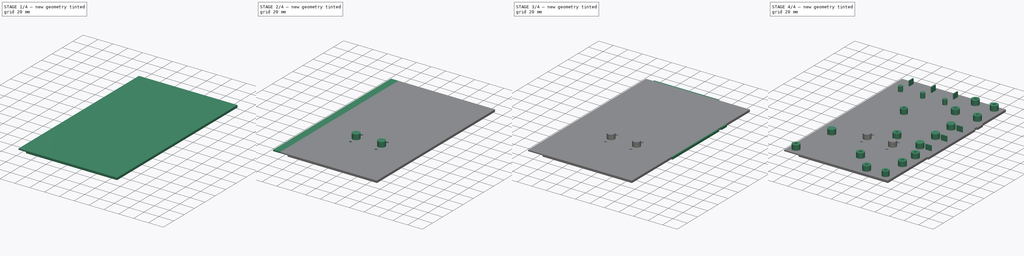
[diagram: build sequence overview — one tinted view per stage of 4, left to right]
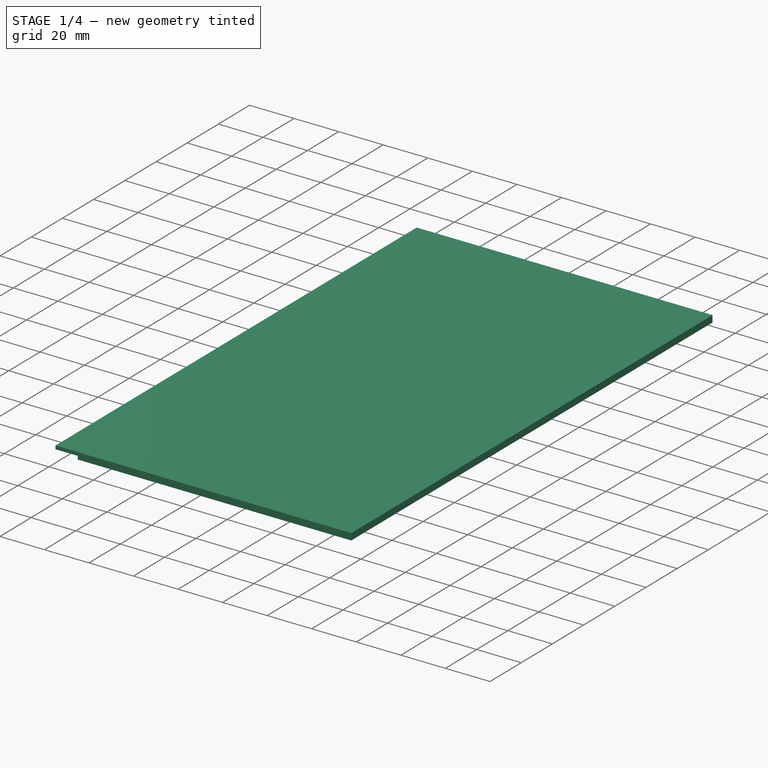
[diagram: stage 1 of 4 — iso view after this stage's code; geometry added in this stage tinted green]
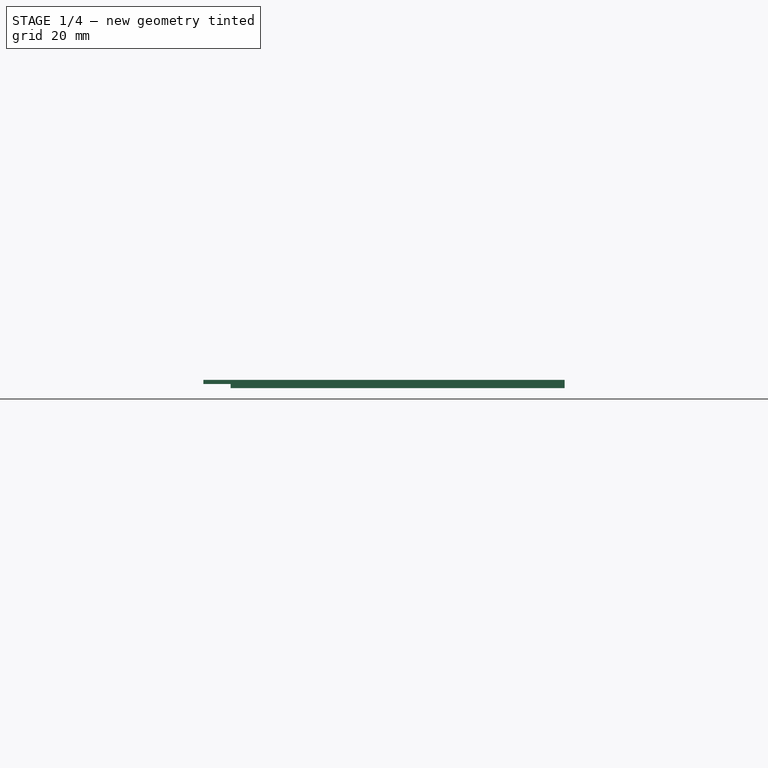
[diagram: stage 1 of 4 — front view after this stage's code; geometry added in this stage tinted green]
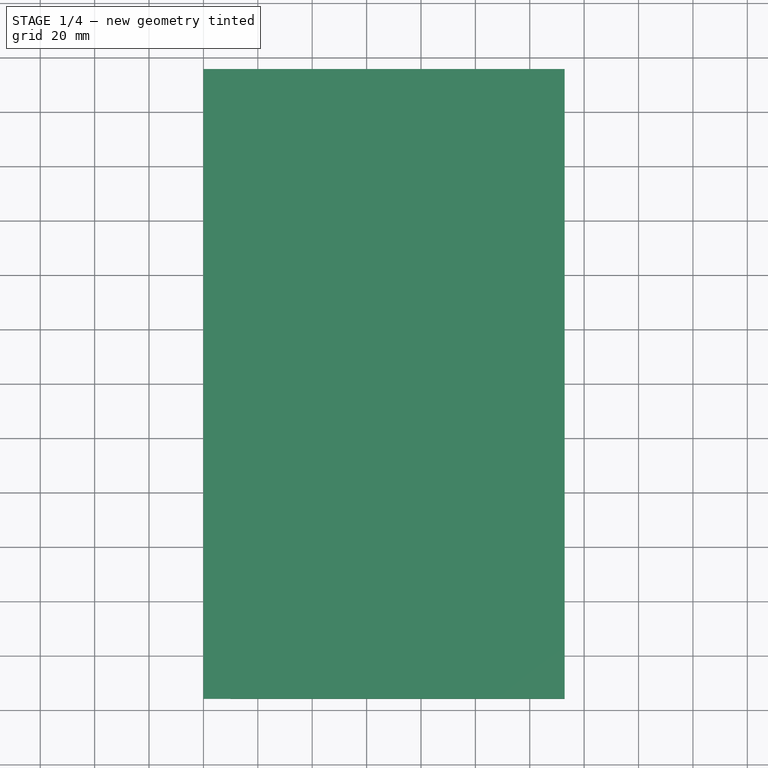
[diagram: stage 1 of 4 — top view after this stage's code; geometry added in this stage tinted green]
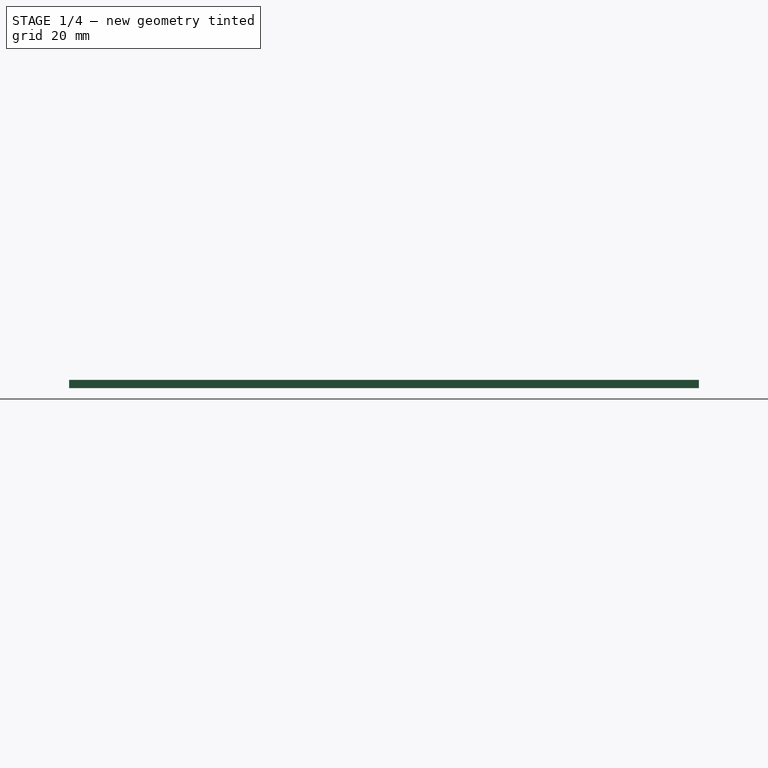
[diagram: stage 1 of 4 — right view after this stage's code; geometry added in this stage tinted green]
FCSTD DOCUMENT  (FreeCAD 0.19R24276 (Git))
Label: switchboard_case_right_bottom_part
License: All rights reserved
LicenseURL: http://en.wikipedia.org/wiki/All_rights_reserved
objects: Sketcher::SketchObject×10, PartDesign::Pad×6, PartDesign::Pocket×3, PartDesign::Hole×1, PartDesign::Body×1
note: 31 computed .brp shape members not serialized (recipe doc carries the construction recipe); baked Part::Feature solids carry a one-line shape summary decoded from their .brp

FEATURE [Sketcher::SketchObject] Sketch  label="base"
  FullyConstrained = true
  MapMode = 2
  Placement = pos=(0,0,18) rot=(0,0,1;0rad)
  sketch-geometry (4):
    g0: LineSegment StartX=0 StartY=115.8 StartZ=0 EndX=132.8 EndY=115.8 EndZ=0
    g1: LineSegment StartX=132.8 StartY=115.8 StartZ=0 EndX=132.8 EndY=-115.8 EndZ=0
    g2: LineSegment StartX=132.8 StartY=-115.8 StartZ=0 EndX=0 EndY=-115.8 EndZ=0
    g3: LineSegment StartX=0 StartY=-115.8 StartZ=0 EndX=0 EndY=115.8 EndZ=0
  constraints (12):
    c: Coincident(g0,g1)
    c: Coincident(g1,g2)
    c: Coincident(g2,g3)
    c: Coincident(g3,g0)
    c: Horizontal(g0)
    c: Horizontal(g2)
    c: Vertical(g1)
    c: Vertical(g3)
    c: DistanceY(g-1,g0) = 115.8
    c: DistanceY(g2,g-1) = 115.8
    c: DistanceX(g0,g0) = 132.8
    c: DistanceX(g-1,g0) = 0
FEATURE [PartDesign::Pad] Pad  label="base_pad"
  Direction = (1,1,1)
  Length = 3
  Length2 = 100
  Placement = pos=(0,0,18) rot=(0,0,1;0rad)
  Profile = -> Sketch
  Type = 0
FEATURE [Sketcher::SketchObject] Sketch001  label="junction_in"
  FullyConstrained = true
  MapMode = 5
  Placement = pos=(0,0,18) rot=(0.57735,-0.57735,-0.57735;2.0944rad)
  Support = -> [Pad]
  sketch-geometry (4):
    g0: LineSegment StartX=-115.8 StartY=1.5 StartZ=0 EndX=115.8 EndY=1.5 EndZ=0
    g1: LineSegment StartX=115.8 StartY=1.5 StartZ=0 EndX=115.8 EndY=0 EndZ=0
    g2: LineSegment StartX=115.8 StartY=0 StartZ=0 EndX=-115.8 EndY=0 EndZ=0
    g3: LineSegment StartX=-115.8 StartY=0 StartZ=0 EndX=-115.8 EndY=1.5 EndZ=0
  constraints (12):
    c: Coincident(g0,g1)
    c: Coincident(g1,g2)
    c: Coincident(g2,g3)
    c: Coincident(g3,g0)
    c: Horizontal(g0)
    c: Horizontal(g2)
    c: Vertical(g1)
    c: Vertical(g3)
    c: PointOnObject(g1,g-1)
    c: DistanceX(g2,g-1) = 115.8
    c: DistanceX(g-1,g1) = 115.8
    c: DistanceY(g3,g3) = 1.5
FEATURE [PartDesign::Pocket] Pocket  label="junction_pocket"
  BaseFeature = -> Pad
  Length = 10
  Length2 = 100
  Placement = pos=(0,0,18) rot=(0,0,1;0rad)
  Profile = -> Sketch001
  Type = 0
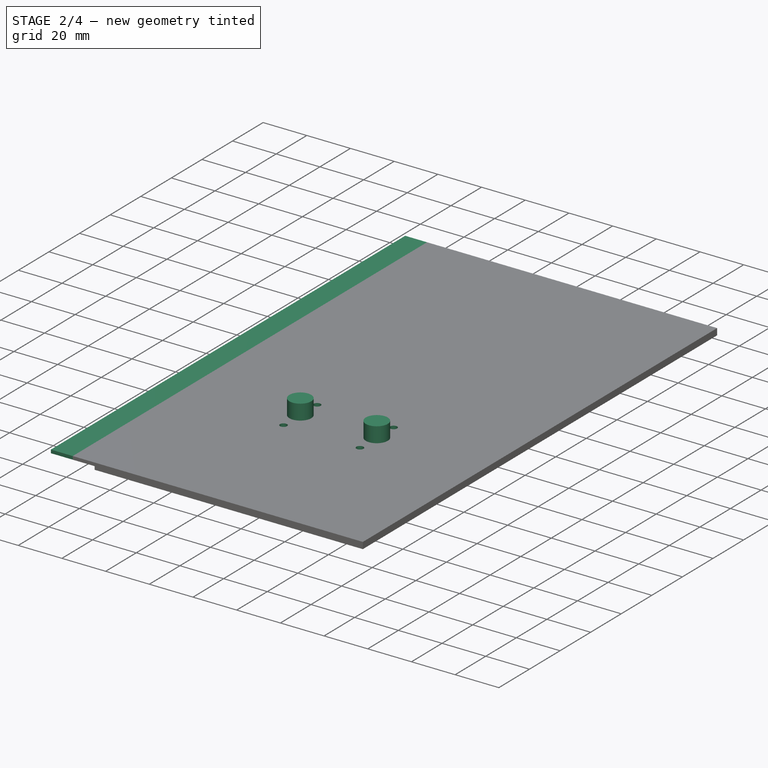
[diagram: stage 2 of 4 — iso view after this stage's code; geometry added in this stage tinted green]
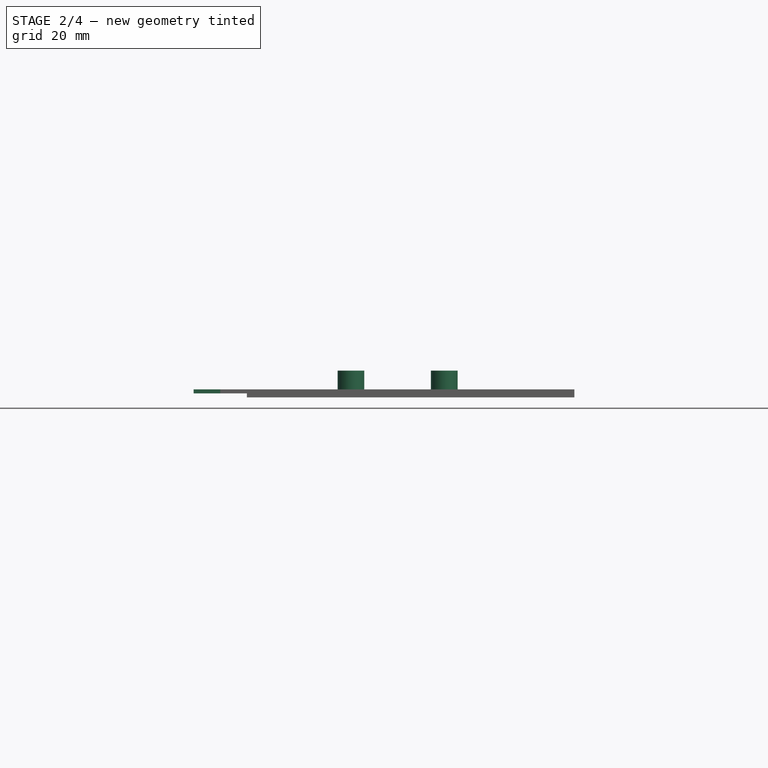
[diagram: stage 2 of 4 — front view after this stage's code; geometry added in this stage tinted green]
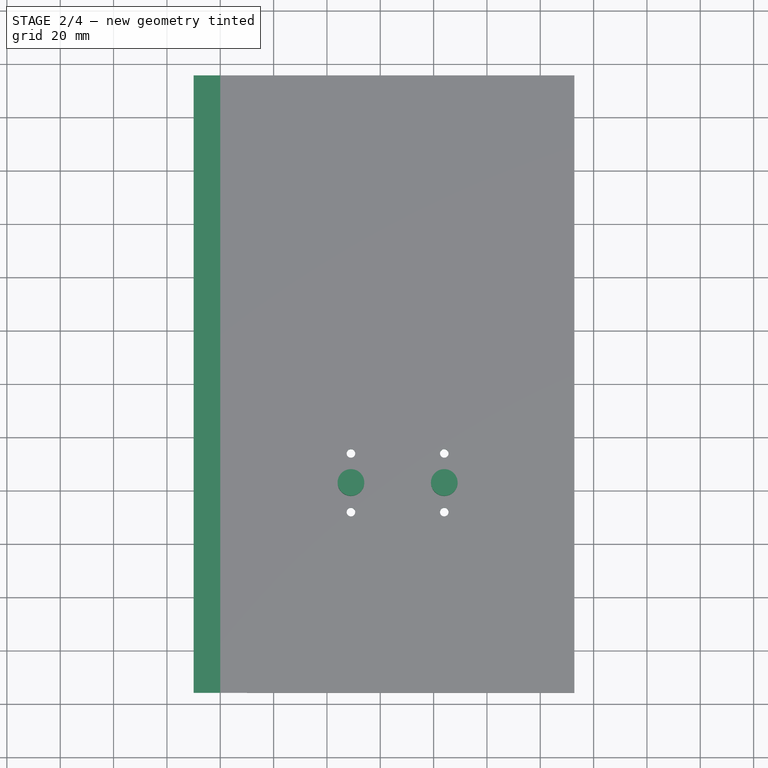
[diagram: stage 2 of 4 — top view after this stage's code; geometry added in this stage tinted green]
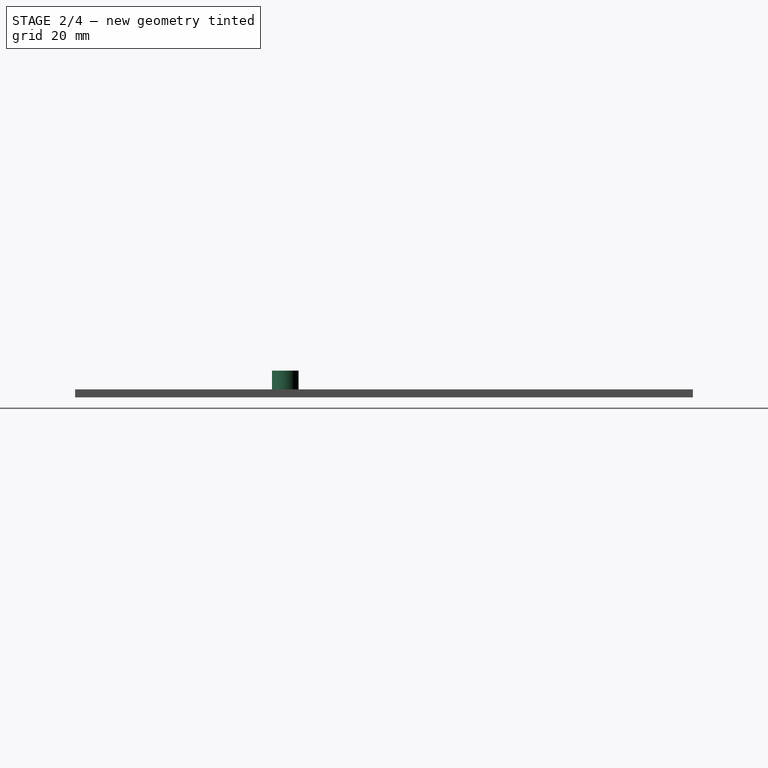
[diagram: stage 2 of 4 — right view after this stage's code; geometry added in this stage tinted green]
FEATURE [Sketcher::SketchObject] Sketch002  label="junction_out"
  FullyConstrained = true
  MapMode = 5
  Placement = pos=(0,0,18) rot=(0.57735,-0.57735,-0.57735;2.0944rad)
  Support = -> [Pocket]
  sketch-geometry (4):
    g0: LineSegment StartX=-115.8 StartY=3 StartZ=0 EndX=115.8 EndY=3 EndZ=0
    g1: LineSegment StartX=115.8 StartY=3 StartZ=0 EndX=115.8 EndY=1.5 EndZ=0
    g2: LineSegment StartX=115.8 StartY=1.5 StartZ=0 EndX=-115.8 EndY=1.5 EndZ=0
    g3: LineSegment StartX=-115.8 StartY=1.5 StartZ=0 EndX=-115.8 EndY=3 EndZ=0
  constraints (12):
    c: Coincident(g0,g1)
    c: Coincident(g1,g2)
    c: Coincident(g2,g3)
    c: Coincident(g3,g0)
    c: Horizontal(g0)
    c: Horizontal(g2)
    c: Vertical(g1)
    c: Vertical(g3)
    c: DistanceX(g2,g-1) = 115.8
    c: DistanceX(g-1,g1) = 115.8
    c: DistanceY(g3,g3) = 1.5
    c: DistanceY(g-1,g2) = 1.5
FEATURE [PartDesign::Pad] Pad001  label="junction_pad"
  BaseFeature = -> Pocket
  Direction = (1,1,1)
  Length = 10
  Length2 = 100
  Placement = pos=(0,0,18) rot=(0,0,1;0rad)
  Profile = -> Sketch002
  Type = 0
FEATURE [Sketcher::SketchObject] Sketch005  label="din_holder_hole_top"
  FullyConstrained = true
  MapMode = 5
  Placement = pos=(0,0,21) rot=(0,0,1;0rad)
  sketch-geometry (4):
    g0: Circle CenterX=49 CenterY=-26 CenterZ=0 NormalX=0 NormalY=0 NormalZ=1 AngleXU=0 Radius=1.6
    g1: Circle CenterX=84 CenterY=-26 CenterZ=0 NormalX=0 NormalY=0 NormalZ=1 AngleXU=0 Radius=1.6
    g2: Circle CenterX=49 CenterY=-48 CenterZ=0 NormalX=0 NormalY=0 NormalZ=1 AngleXU=0 Radius=1.6
    g3: Circle CenterX=84 CenterY=-48 CenterZ=0 NormalX=0 NormalY=0 NormalZ=1 AngleXU=0 Radius=1.6
  constraints (12):
    c: Radius(g0) = 1.6
    c: Radius(g1) = 1.6
    c: Radius(g3) = 1.6
    c: Radius(g2) = 1.6
    c: DistanceX(g-1,g0) = 49
    c: DistanceY(g0,g-1) = 26
    c: DistanceX(g0,g1) = 35
    c: DistanceY(g1,g0) = 0
    c: DistanceY(g2,g0) = 22
    c: DistanceY(g3,g1) = 22
    c: DistanceX(g1,g3) = 0
    c: DistanceX(g2,g0) = 0
FEATURE [PartDesign::Hole] Hole  label="din_holder_hole_top_hole"
  BaseFeature = -> Pad001
  Depth = 25
  DepthType = 1
  Diameter = 3.2
  DrillForDepth = false
  DrillPoint = 1
  DrillPointAngle = 118
  HoleCutCountersinkAngle = 90
  HoleCutCustomValues = false
  HoleCutDepth = 0
  HoleCutDiameter = 6.1
  HoleCutType = 0
  ModelActualThread = false
  Placement = pos=(0,0,18) rot=(0,0,1;0rad)
  Profile = -> Sketch005
  Tapered = false
  TaperedAngle = 90
  ThreadAngle = 0
  ThreadClass = 0
  ThreadCutOffInner = 0
  ThreadCutOffOuter = 0
  ThreadDirection = 0
  ThreadFit = 0
  ThreadPitch = 0
  ThreadSize = 0
  ThreadType = 0
  Threaded = false
FEATURE [Sketcher::SketchObject] Sketch006  label="din_holder_distance_columns"
  FullyConstrained = true
  MapMode = 5
  Placement = pos=(0,0,21) rot=(0,0,1;0rad)
  Support = -> [Hole]
  sketch-geometry (2):
    g0: Circle CenterX=49 CenterY=-37 CenterZ=0 NormalX=0 NormalY=0 NormalZ=1 AngleXU=0 Radius=5
    g1: Circle CenterX=84 CenterY=-37 CenterZ=0 NormalX=0 NormalY=0 NormalZ=1 AngleXU=0 Radius=5
  constraints (6):
    c: Radius(g0) = 5
    c: Radius(g1) = 5
    c: DistanceY(g0,g-1) = 37
    c: DistanceX(g-1,g0) = 49
    c: DistanceX(g0,g1) = 35
    c: DistanceY(g0,g1) = 0
FEATURE [PartDesign::Pad] Pad003  label="din_holder_distance_columns_pad"
  BaseFeature = -> Hole
  Direction = (1,1,1)
  Length = 7
  Length2 = 100
  Placement = pos=(0,0,18) rot=(0,0,1;0rad)
  Profile = -> Sketch006
  Type = 0
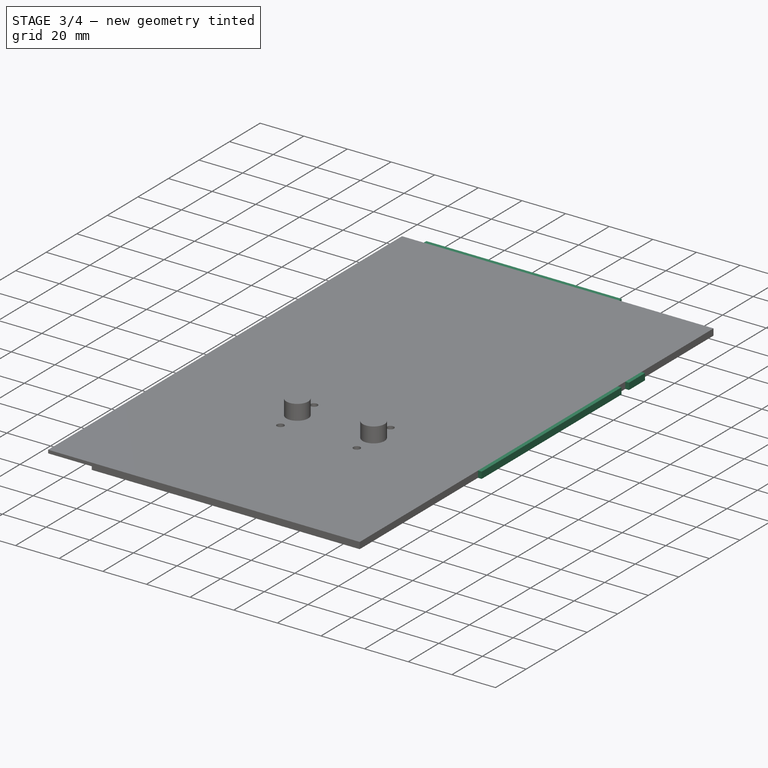
[diagram: stage 3 of 4 — iso view after this stage's code; geometry added in this stage tinted green]
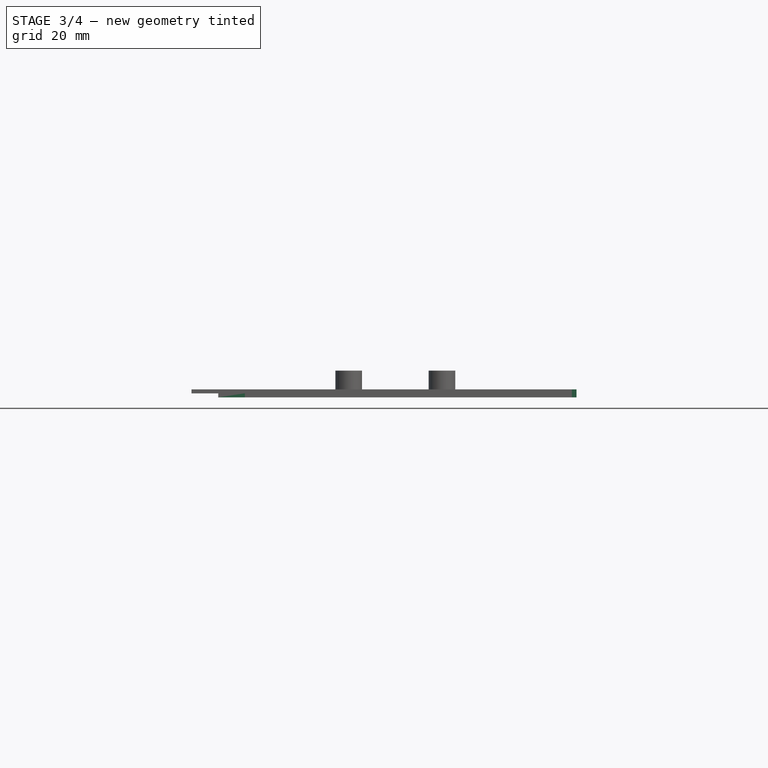
[diagram: stage 3 of 4 — front view after this stage's code; geometry added in this stage tinted green]
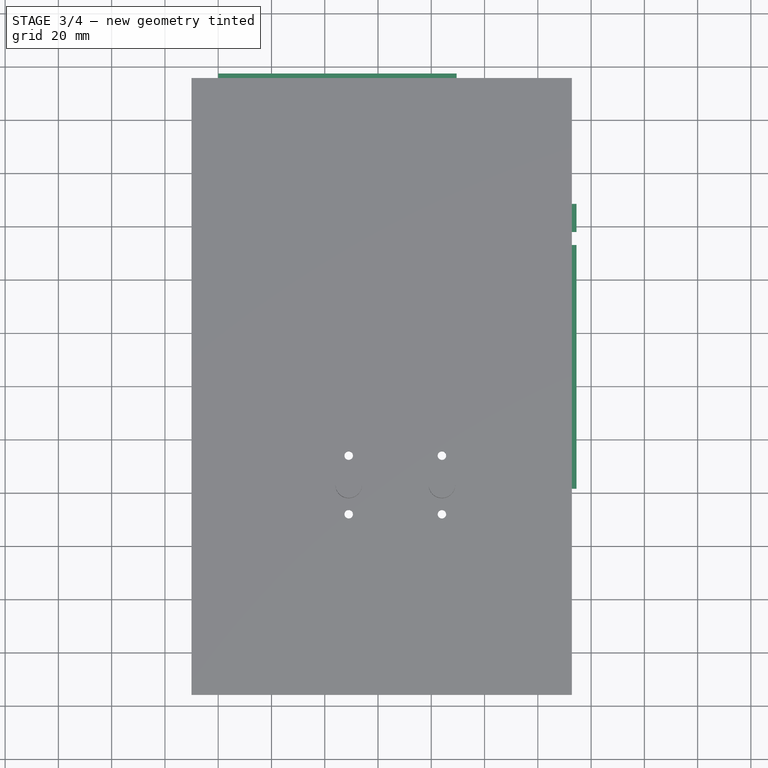
[diagram: stage 3 of 4 — top view after this stage's code; geometry added in this stage tinted green]
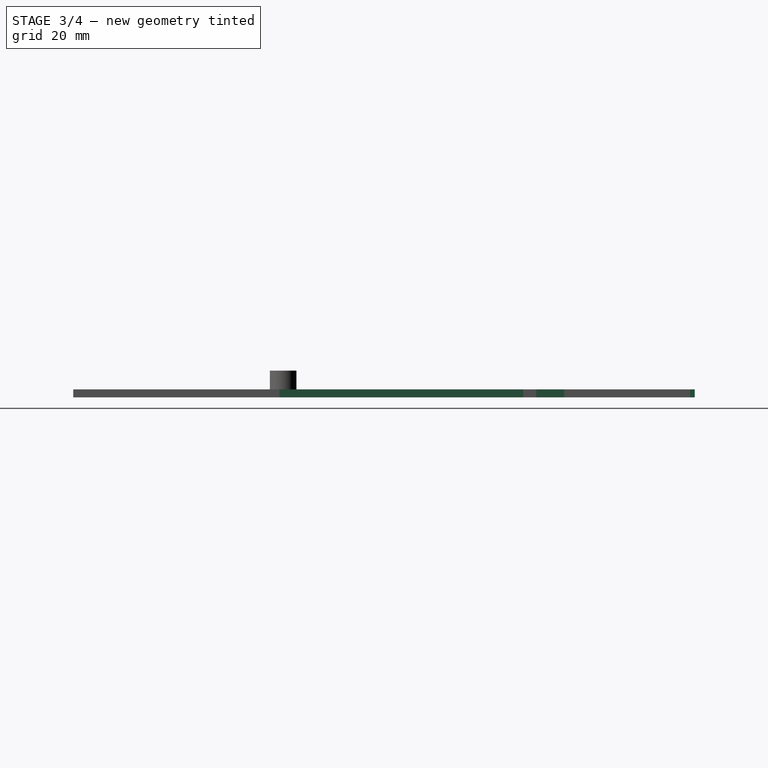
[diagram: stage 3 of 4 — right view after this stage's code; geometry added in this stage tinted green]
FEATURE [Sketcher::SketchObject] Sketch007  label="din_holder_distance_columns_hole"
  FullyConstrained = true
  MapMode = 5
  Placement = pos=(0,0,18) rot=(1,0,0;3.14159rad)
  Support = -> [Pad003]
  sketch-geometry (2):
    g0: Circle CenterX=49 CenterY=37 CenterZ=0 NormalX=0 NormalY=0 NormalZ=1 AngleXU=0 Radius=1.9
    g1: Circle CenterX=84 CenterY=37 CenterZ=0 NormalX=0 NormalY=0 NormalZ=1 AngleXU=0 Radius=1.9
  constraints (6):
    c: Radius(g0) = 1.9
    c: Radius(g1) = 1.9
    c: DistanceX(g0,g1) = 35
    c: DistanceY(g-1,g0) = 37
    c: DistanceX(g-1,g0) = 49
    c: DistanceY(g0,g1) = 0
FEATURE [PartDesign::Pocket] Pocket002  label="din_holder_distance_columns_hole_pocket"
  BaseFeature = -> Pad003
  Length = 8.6
  Length2 = 100
  Placement = pos=(0,0,18) rot=(0,0,1;0rad)
  Profile = -> Sketch007
  Type = 0
FEATURE [Sketcher::SketchObject] Sketch008  label="edge_right"
  FullyConstrained = true
  MapMode = 5
  Placement = pos=(132.8,0,18) rot=(0.57735,0.57735,0.57735;2.0944rad)
  Support = -> [Pocket002]
  sketch-geometry (8):
    g0: LineSegment StartX=-38.4 StartY=3 StartZ=0 EndX=53.1 EndY=3 EndZ=0
    g1: LineSegment StartX=53.1 StartY=3 StartZ=0 EndX=53.1 EndY=0 EndZ=0
    g2: LineSegment StartX=53.1 StartY=0 StartZ=0 EndX=-38.4 EndY=0 EndZ=0
    g3: LineSegment StartX=-38.4 StartY=0 StartZ=0 EndX=-38.4 EndY=3 EndZ=0
    g4: LineSegment StartX=58 StartY=3 StartZ=0 EndX=68.5 EndY=3 EndZ=0
    g5: LineSegment StartX=68.5 StartY=3 StartZ=0 EndX=68.5 EndY=0 EndZ=0
    g6: LineSegment StartX=68.5 StartY=0 StartZ=0 EndX=58 EndY=0 EndZ=0
    g7: LineSegment StartX=58 StartY=0 StartZ=0 EndX=58 EndY=3 EndZ=0
  constraints (24):
    c: Coincident(g0,g1)
    c: Coincident(g1,g2)
    c: Coincident(g2,g3)
    c: Coincident(g3,g0)
    c: Horizontal(g0)
    c: Horizontal(g2)
    c: Vertical(g1)
    c: Vertical(g3)
    c: PointOnObject(g1,g-1)
    c: Coincident(g4,g5)
    c: Coincident(g5,g6)
    c: Coincident(g6,g7)
    c: Coincident(g7,g4)
    c: Horizontal(g4)
    c: Horizontal(g6)
    c: Vertical(g5)
    c: Vertical(g7)
    c: PointOnObject(g5,g-1)
    c: DistanceX(g4,g4) = 10.5
    c: DistanceY(g5,g5) = 3
    c: DistanceY(g3,g3) = 3
    c: DistanceX(g-1,g4) = 58
    c: DistanceX(g2,g2) = 91.5
    c: DistanceX(g1,g6) = 4.9
FEATURE [PartDesign::Pad] Pad004  label="edge_right_pad"
  BaseFeature = -> Pocket002
  Direction = (1,1,1)
  Length = 1.7
  Length2 = 100
  Placement = pos=(0,0,18) rot=(0,0,1;0rad)
  Profile = -> Sketch008
  Type = 0
FEATURE [Sketcher::SketchObject] Sketch009  label="edge_top"
  FullyConstrained = false
  MapMode = 5
  Placement = pos=(0,115.8,18) rot=(0,0.707107,0.707107;3.14159rad)
  Support = -> [Pad004]
  sketch-geometry (4):
    g0: LineSegment StartX=-89.5 StartY=0 StartZ=0 EndX=0 EndY=0 EndZ=0
    g1: LineSegment StartX=0 StartY=0 StartZ=0 EndX=0 EndY=3 EndZ=0
    g2: LineSegment StartX=0 StartY=3 StartZ=0 EndX=-89.5 EndY=3 EndZ=0
    g3: LineSegment StartX=-89.5 StartY=3 StartZ=0 EndX=-89.5 EndY=0 EndZ=0
  constraints (11):
    c: Coincident(g0,g1)
    c: Coincident(g1,g2)
    c: Coincident(g2,g3)
    c: Coincident(g3,g0)
    c: Horizontal(g0)
    c: Horizontal(g2)
    c: Vertical(g1)
    c: Vertical(g3)
    c: DistanceY(g3,g3) = 3
    c: DistanceX(g2,g2) = 89.5
    c: DistanceX(g0,g-1) = 0
FEATURE [PartDesign::Pad] Pad005  label="edge_top_pad"
  BaseFeature = -> Pad004
  Direction = (1,1,1)
  Length = 1.7
  Length2 = 100
  Placement = pos=(0,0,18) rot=(0,0,1;0rad)
  Profile = -> Sketch009
  Type = 0
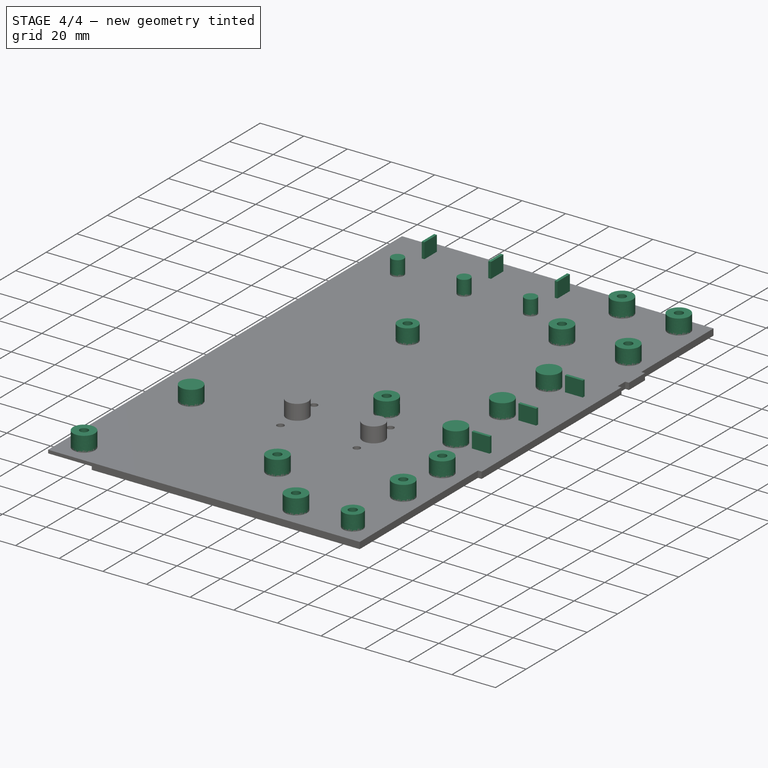
[diagram: stage 4 of 4 — iso view after this stage's code; geometry added in this stage tinted green]
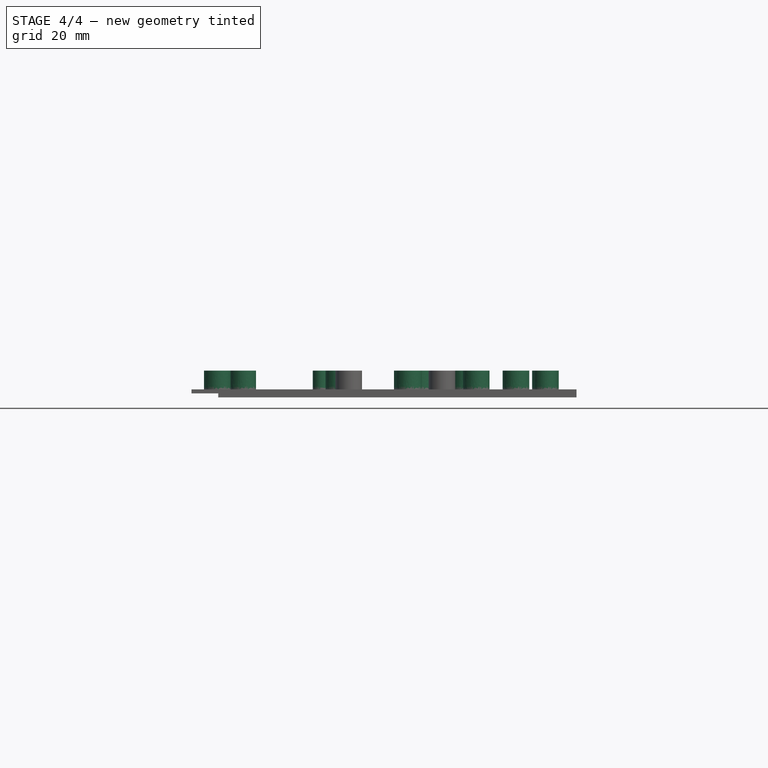
[diagram: stage 4 of 4 — front view after this stage's code; geometry added in this stage tinted green]
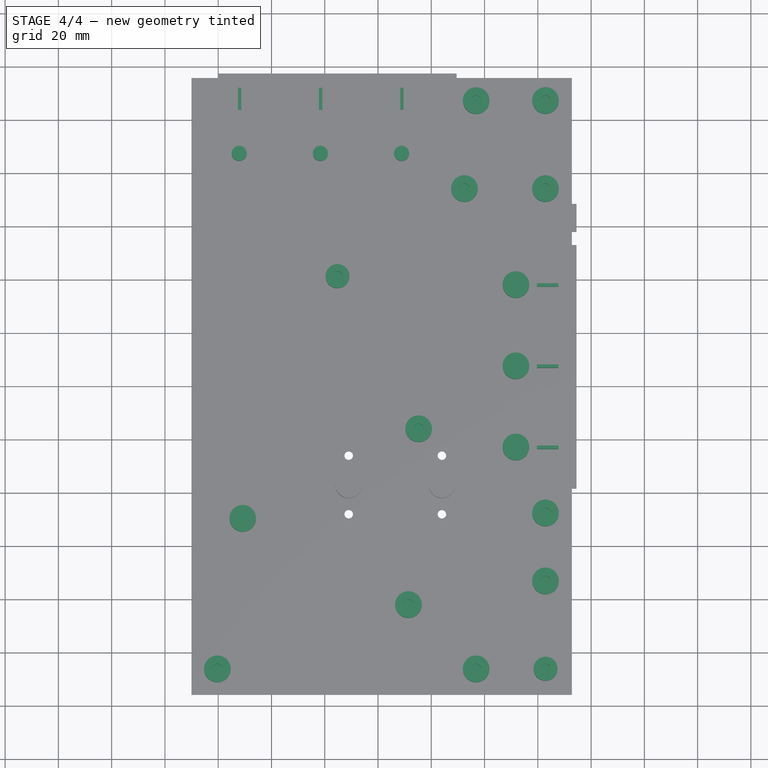
[diagram: stage 4 of 4 — top view after this stage's code; geometry added in this stage tinted green]
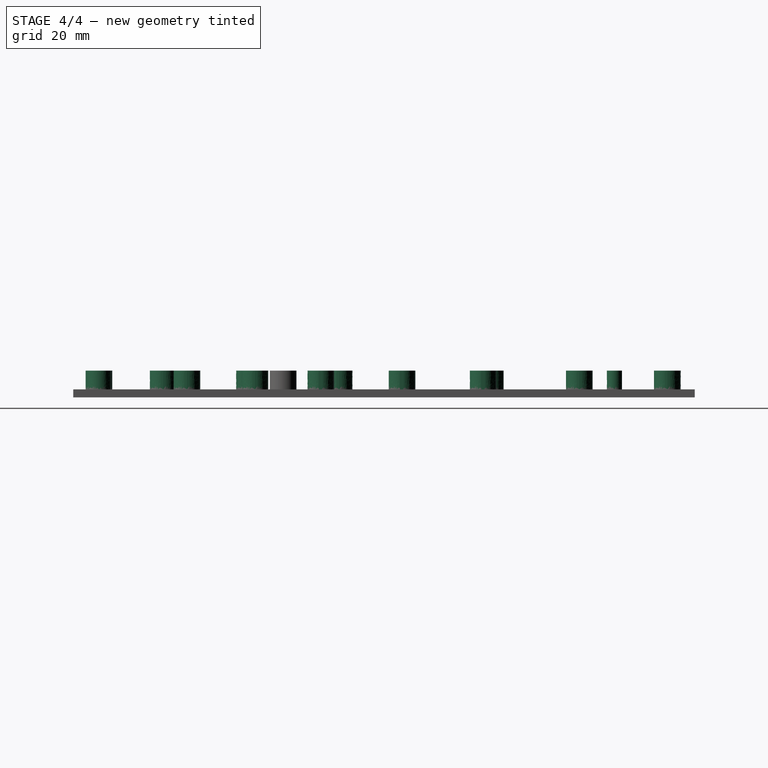
[diagram: stage 4 of 4 — right view after this stage's code; geometry added in this stage tinted green]
FEATURE [Sketcher::SketchObject] Sketch010  label="distance_columns"
  FullyConstrained = false
  MapMode = 5
  Placement = pos=(0,0,21) rot=(0,0,1;0rad)
  Support = -> [Pad005]
  sketch-geometry (43):
    g0: BSplineCurve PolesCount=2 KnotsCount=2 Degree=1 IsPeriodic=0
    g1: BSplineCurve PolesCount=2 KnotsCount=2 Degree=1 IsPeriodic=0
    g2: BSplineCurve PolesCount=2 KnotsCount=2 Degree=1 IsPeriodic=0
    g3: BSplineCurve PolesCount=2 KnotsCount=2 Degree=1 IsPeriodic=0
    g4: BSplineCurve PolesCount=2 KnotsCount=2 Degree=1 IsPeriodic=0
    g5: BSplineCurve PolesCount=2 KnotsCount=2 Degree=1 IsPeriodic=0
    g6: BSplineCurve PolesCount=2 KnotsCount=2 Degree=1 IsPeriodic=0
    g7: BSplineCurve PolesCount=2 KnotsCount=2 Degree=1 IsPeriodic=0
    g8: BSplineCurve PolesCount=2 KnotsCount=2 Degree=1 IsPeriodic=0
    g9: BSplineCurve PolesCount=2 KnotsCount=2 Degree=1 IsPeriodic=0
    g10: BSplineCurve PolesCount=2 KnotsCount=2 Degree=1 IsPeriodic=0
    g11: BSplineCurve PolesCount=2 KnotsCount=2 Degree=1 IsPeriodic=0
    g12: BSplineCurve PolesCount=7 KnotsCount=4 Degree=2 IsPeriodic=0
    g13: BSplineCurve PolesCount=7 KnotsCount=4 Degree=2 IsPeriodic=0
    g14: BSplineCurve PolesCount=2 KnotsCount=2 Degree=1 IsPeriodic=0
    g15: BSplineCurve PolesCount=2 KnotsCount=2 Degree=1 IsPeriodic=0
    g16: BSplineCurve PolesCount=2 KnotsCount=2 Degree=1 IsPeriodic=0
    g17: BSplineCurve PolesCount=2 KnotsCount=2 Degree=1 IsPeriodic=0
    g18: BSplineCurve PolesCount=2 KnotsCount=2 Degree=1 IsPeriodic=0
    g19: BSplineCurve PolesCount=2 KnotsCount=2 Degree=1 IsPeriodic=0
    g20: BSplineCurve PolesCount=2 KnotsCount=2 Degree=1 IsPeriodic=0
    g21: BSplineCurve PolesCount=2 KnotsCount=2 Degree=1 IsPeriodic=0
    g22: BSplineCurve PolesCount=2 KnotsCount=2 Degree=1 IsPeriodic=0
    g23: BSplineCurve PolesCount=2 KnotsCount=2 Degree=1 IsPeriodic=0
    g24: BSplineCurve PolesCount=2 KnotsCount=2 Degree=1 IsPeriodic=0
    g25: BSplineCurve PolesCount=2 KnotsCount=2 Degree=1 IsPeriodic=0
    g26: BSplineCurve PolesCount=7 KnotsCount=4 Degree=2 IsPeriodic=0
    g27: BSplineCurve PolesCount=7 KnotsCount=4 Degree=2 IsPeriodic=0
    g28: BSplineCurve PolesCount=7 KnotsCount=4 Degree=2 IsPeriodic=0
    g29: BSplineCurve PolesCount=7 KnotsCount=4 Degree=2 IsPeriodic=0
    g30: BSplineCurve PolesCount=7 KnotsCount=4 Degree=2 IsPeriodic=0
    g31: BSplineCurve PolesCount=7 KnotsCount=4 Degree=2 IsPeriodic=0
    g32: BSplineCurve PolesCount=7 KnotsCount=4 Degree=2 IsPeriodic=0
    g33: BSplineCurve PolesCount=7 KnotsCount=4 Degree=2 IsPeriodic=0
    g34: BSplineCurve PolesCount=7 KnotsCount=4 Degree=2 IsPeriodic=0
    g35: BSplineCurve PolesCount=7 KnotsCount=4 Degree=2 IsPeriodic=0
    g36: BSplineCurve PolesCount=7 KnotsCount=4 Degree=2 IsPeriodic=0
    g37: BSplineCurve PolesCount=7 KnotsCount=4 Degree=2 IsPeriodic=0
    g38: BSplineCurve PolesCount=7 KnotsCount=4 Degree=2 IsPeriodic=0
    g39: BSplineCurve PolesCount=7 KnotsCount=4 Degree=2 IsPeriodic=0
    g40: BSplineCurve PolesCount=7 KnotsCount=4 Degree=2 IsPeriodic=0
    g41: BSplineCurve PolesCount=7 KnotsCount=4 Degree=2 IsPeriodic=0
    g42: BSplineCurve PolesCount=7 KnotsCount=4 Degree=2 IsPeriodic=0
FEATURE [PartDesign::Pad] Pad006  label="distance_columns_pad"
  BaseFeature = -> Pad005
  Direction = (1,1,1)
  Length = 7
  Length2 = 100
  Placement = pos=(0,0,18) rot=(0,0,1;0rad)
  Profile = -> Sketch010
  Type = 0
FEATURE [Sketcher::SketchObject] Sketch011  label="distance_columns_hole"
  FullyConstrained = false
  MapMode = 5
  Placement = pos=(0,0,28) rot=(0,0,1;0rad)
  Support = -> [Pad006]
  sketch-geometry (12):
    g0: BSplineCurve PolesCount=7 KnotsCount=4 Degree=2 IsPeriodic=0
    g1: BSplineCurve PolesCount=7 KnotsCount=4 Degree=2 IsPeriodic=0
    g2: BSplineCurve PolesCount=7 KnotsCount=4 Degree=2 IsPeriodic=0
    g3: BSplineCurve PolesCount=7 KnotsCount=4 Degree=2 IsPeriodic=0
    g4: BSplineCurve PolesCount=7 KnotsCount=4 Degree=2 IsPeriodic=0
    g5: BSplineCurve PolesCount=7 KnotsCount=4 Degree=2 IsPeriodic=0
    g6: BSplineCurve PolesCount=7 KnotsCount=4 Degree=2 IsPeriodic=0
    g7: BSplineCurve PolesCount=7 KnotsCount=4 Degree=2 IsPeriodic=0
    g8: BSplineCurve PolesCount=7 KnotsCount=4 Degree=2 IsPeriodic=0
    g9: BSplineCurve PolesCount=7 KnotsCount=4 Degree=2 IsPeriodic=0
    g10: BSplineCurve PolesCount=7 KnotsCount=4 Degree=2 IsPeriodic=0
    g11: BSplineCurve PolesCount=7 KnotsCount=4 Degree=2 IsPeriodic=0
FEATURE [PartDesign::Pocket] Pocket003  label="distance_columns_hole_pocket"
  BaseFeature = -> Pad006
  Length = 5.6
  Length2 = 100
  Placement = pos=(0,0,18) rot=(0,0,1;0rad)
  Profile = -> Sketch011
  Type = 0
FEATURE [PartDesign::Body] Body
  Group = -> [Sketch,Pad,Sketch001,Pocket,Sketch002,Pad001,Sketch005,Hole,Sketch006,Pad003,Sketch007,Pocket002,Sketch008,Pad004,Sketch009,Pad005,Sketch010,Pad006,Sketch011,Pocket003]
  Origin = -> Origin
  Tip = -> Pocket003
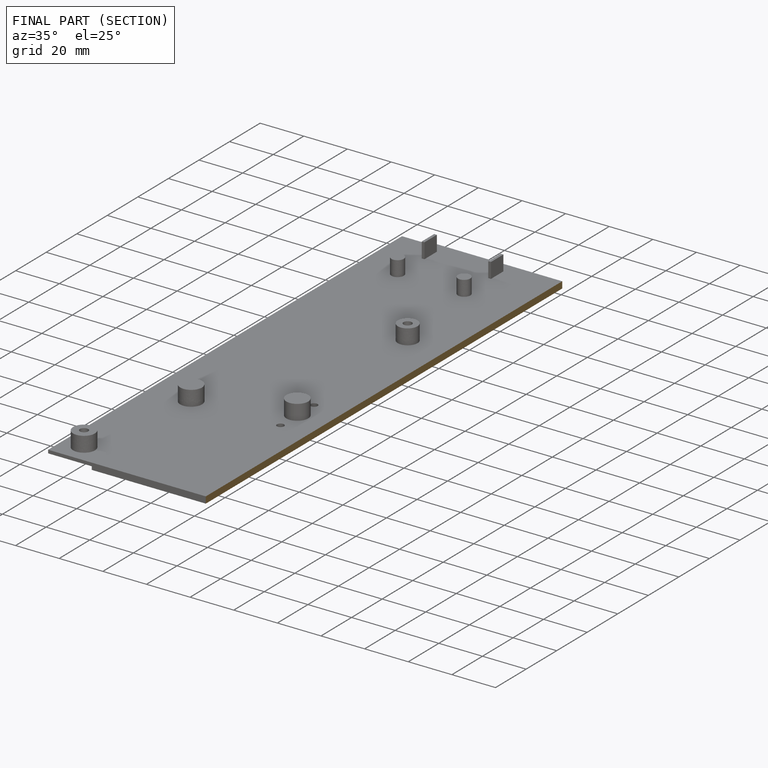
[diagram: finished part — half-section view (interior)]
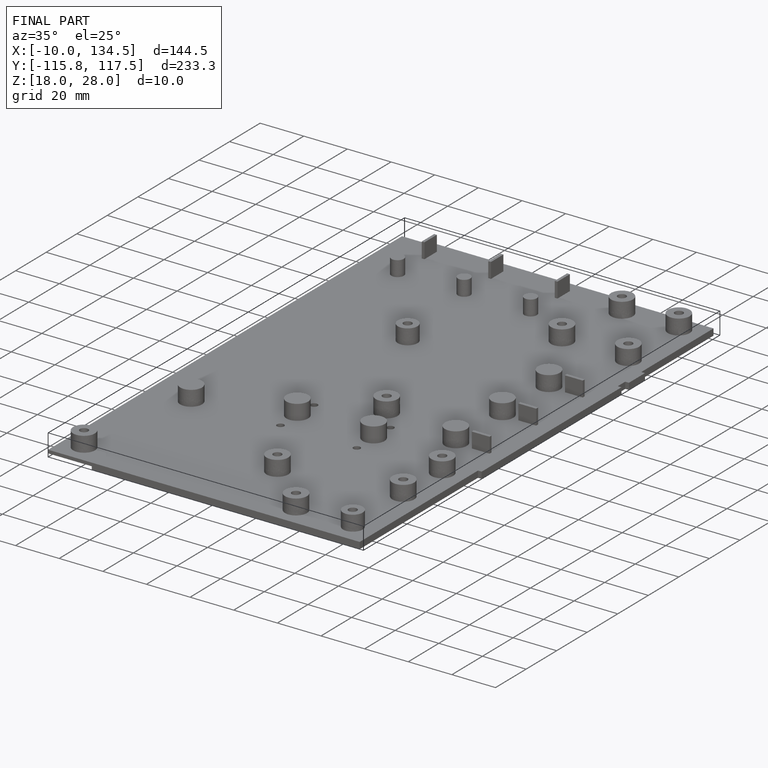
[diagram: finished part — iso view with bounding-box wireframe]
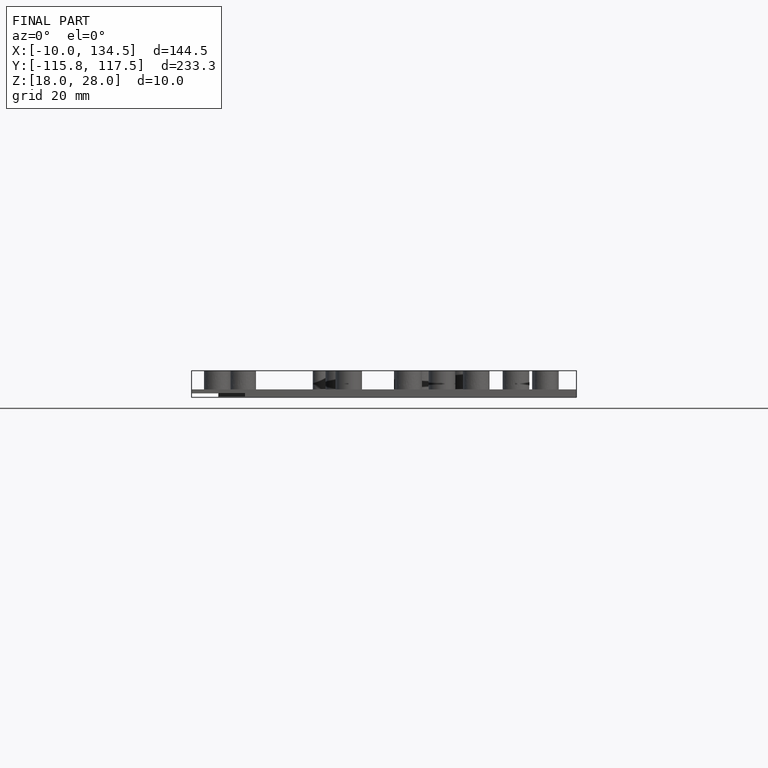
[diagram: finished part — front view with bounding-box wireframe]
